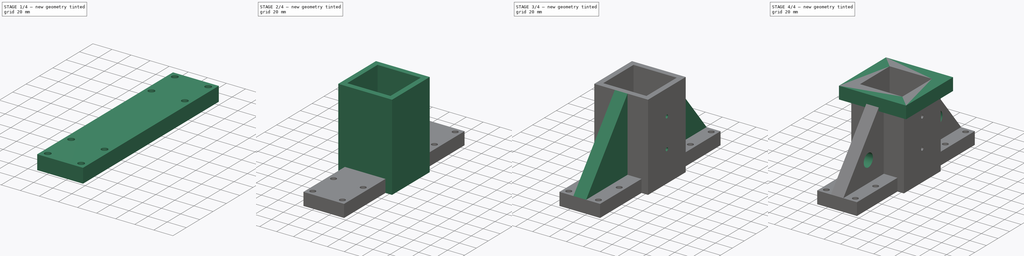
[diagram: build sequence overview — one tinted view per stage of 4, left to right]
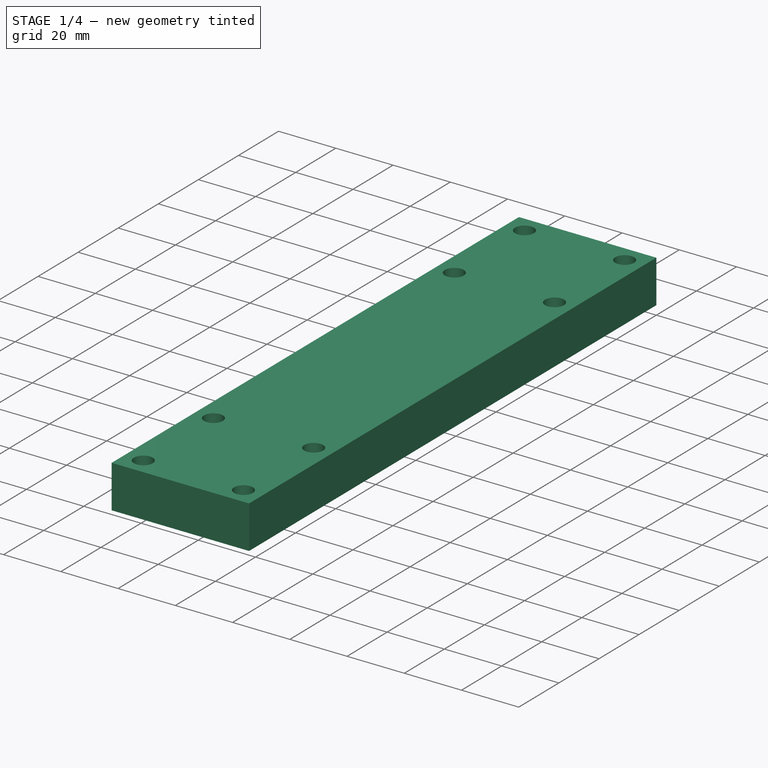
[diagram: stage 1 of 4 — iso view after this stage's code; geometry added in this stage tinted green]
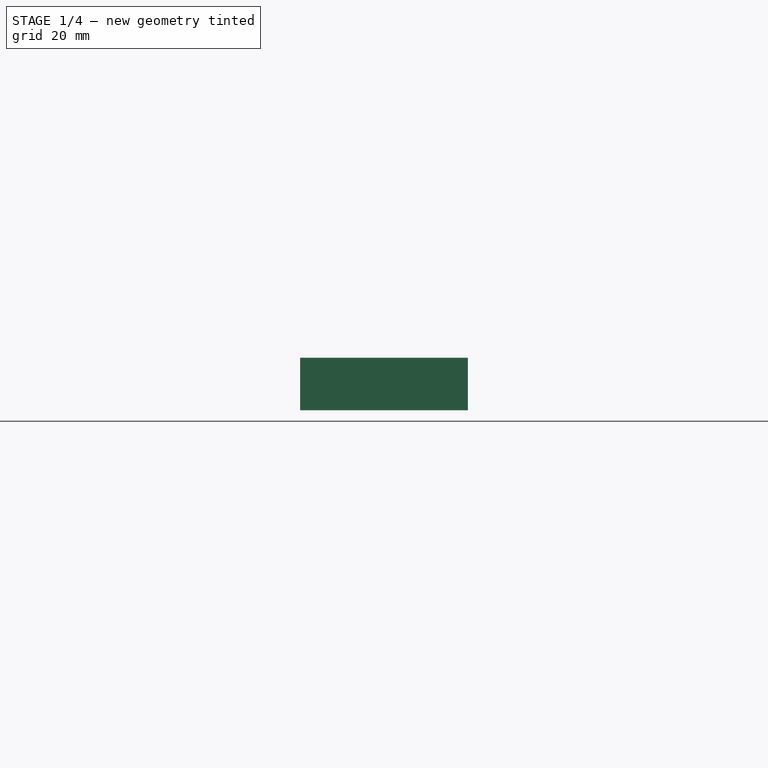
[diagram: stage 1 of 4 — front view after this stage's code; geometry added in this stage tinted green]
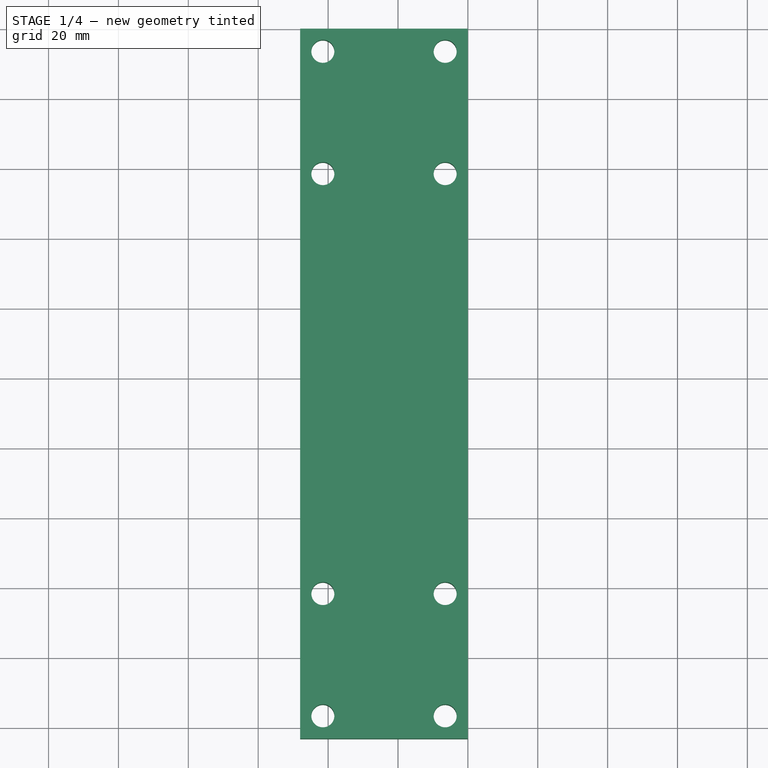
[diagram: stage 1 of 4 — top view after this stage's code; geometry added in this stage tinted green]
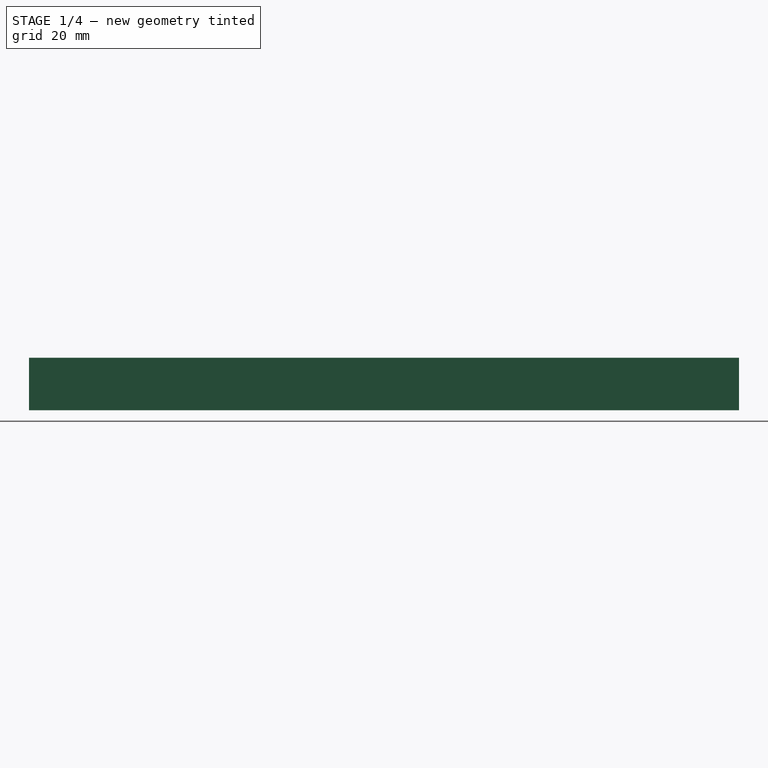
[diagram: stage 1 of 4 — right view after this stage's code; geometry added in this stage tinted green]
FCSTD DOCUMENT  (FreeCAD 1.0R39319 (Git))
Label: 2x upright
License: All rights reserved
LicenseURL: https://en.wikipedia.org/wiki/All_rights_reserved
objects: Sketcher::SketchObject×9, PartDesign::Pocket×5, PartDesign::Pad×4, PartDesign::Body×1
note: 46 computed .brp shape members not serialized (recipe doc carries the construction recipe); baked Part::Feature solids carry a one-line shape summary decoded from their .brp

FEATURE [Sketcher::SketchObject] Sketch
  ArcFitTolerance = 1e-06
  AttachmentSupport = -> [XZ_Plane]
  FullyConstrained = true
  MakeInternals = false
  MapMode = 5
  Placement = pos=(0,0,0) rot=(1,0,0;1.5708rad)
  sketch-geometry (4):
    g0: LineSegment StartX=0 StartY=0 StartZ=0 EndX=0 EndY=15 EndZ=0
    g1: LineSegment StartX=0 StartY=15 StartZ=0 EndX=-48 EndY=15 EndZ=0
    g2: LineSegment StartX=-48 StartY=15 StartZ=0 EndX=-48 EndY=0 EndZ=0
    g3: LineSegment StartX=-48 StartY=0 StartZ=0 EndX=0 EndY=0 EndZ=0
  constraints (11):
    c: Coincident(g0,g1)
    c: Coincident(g1,g2)
    c: Coincident(g2,g3)
    c: Coincident(g3,g0)
    c: Vertical(g0)
    c: Vertical(g2)
    c: Horizontal(g1)
    c: Horizontal(g3)
    c: Coincident(g0,g-1)
    c: DistanceY(g0,g1) = 15
    c: DistanceX(g1,g0) = 48
FEATURE [PartDesign::Pad] Pad
  Direction = (0,-1,2e-16)
  Length = 203.2
  Length2 = 10
  Placement = pos=(0,0,0) rot=(1,0,0;1.5708rad)
  Profile = -> Sketch
  ReferenceAxis = -> Sketch [N_Axis]
  Refine = true
  Suppressed = false
  Type = 0
FEATURE [Sketcher::SketchObject] Sketch001
  ArcFitTolerance = 1e-06
  AttachmentSupport = -> [Pad]
  FullyConstrained = true
  MakeInternals = false
  MapMode = 5
  Placement = pos=(0,0,0) rot=(1,0,0;3.14159rad)
  sketch-geometry (16):
    g0: LineSegment [constr] StartX=-6.5 StartY=6.5 StartZ=0 EndX=-6.5 EndY=41.5 EndZ=0
    g1: LineSegment [constr] StartX=-41.5 StartY=6.5 StartZ=0 EndX=-41.5 EndY=41.5 EndZ=0
    g2: LineSegment [constr] StartX=-41.5 StartY=6.5 StartZ=0 EndX=-6.5 EndY=6.5 EndZ=0
    g3: LineSegment [constr] StartX=-41.5 StartY=41.5 StartZ=0 EndX=-6.5 EndY=41.5 EndZ=0
    g4: Circle CenterX=-41.5 CenterY=41.5 CenterZ=0 NormalX=0 NormalY=0 NormalZ=1 AngleXU=0 Radius=3.3
    g5: Circle CenterX=-6.5 CenterY=41.5 CenterZ=0 NormalX=0 NormalY=0 NormalZ=1 AngleXU=0 Radius=3.3
    g6: Circle CenterX=-41.5 CenterY=6.5 CenterZ=0 NormalX=0 NormalY=0 NormalZ=1 AngleXU=0 Radius=3.3
    g7: Circle CenterX=-6.5 CenterY=6.5 CenterZ=0 NormalX=0 NormalY=0 NormalZ=1 AngleXU=0 Radius=3.3
    g8: LineSegment [constr] StartX=-6.5 StartY=161.7 StartZ=0 EndX=-6.5 EndY=196.7 EndZ=0
    g9: LineSegment [constr] StartX=-41.5 StartY=161.7 StartZ=0 EndX=-41.5 EndY=196.7 EndZ=0
    g10: LineSegment [constr] StartX=-41.5 StartY=161.7 StartZ=0 EndX=-6.5 EndY=161.7 EndZ=0
    g11: LineSegment [constr] StartX=-41.5 StartY=196.7 StartZ=0 EndX=-6.5 EndY=196.7 EndZ=0
    g12: Circle CenterX=-41.5 CenterY=196.7 CenterZ=0 NormalX=0 NormalY=0 NormalZ=1 AngleXU=0 Radius=3.3
    g13: Circle CenterX=-6.5 CenterY=196.7 CenterZ=0 NormalX=0 NormalY=0 NormalZ=1 AngleXU=0 Radius=3.3
    g14: Circle CenterX=-41.5 CenterY=161.7 CenterZ=0 NormalX=0 NormalY=0 NormalZ=1 AngleXU=0 Radius=3.3
    g15: Circle CenterX=-6.5 CenterY=161.7 CenterZ=0 NormalX=0 NormalY=0 NormalZ=1 AngleXU=0 Radius=3.3
  constraints (40):
    c: Vertical(g0)
    c: Vertical(g1)
    c: Block(g0)
    c: Block(g1)
    c: Horizontal(g2)
    c: Horizontal(g3)
    c: Block(g3)
    c: Block(g2)
    c: Coincident(g1,g3)
    c: Coincident(g3,g0)
    c: Coincident(g1,g2)
    c: Coincident(g0,g2)
    c: Diameter(g4) = 6.6
    c: Coincident(g4,g1)
    c: Diameter(g5) = 6.6
    c: Coincident(g5,g0)
    c: Diameter(g6) = 6.6
    c: Coincident(g6,g1)
    c: Diameter(g7) = 6.6
    c: Coincident(g7,g0)
    c: Vertical(g8)
    c: Vertical(g9)
    c: Block(g8)
    c: Block(g9)
    c: Horizontal(g10)
    c: Horizontal(g11)
    c: Block(g11)
    c: Block(g10)
    c: Coincident(g9,g11)
    c: Coincident(g11,g8)
    c: Coincident(g9,g10)
    c: Coincident(g8,g10)
    c: Diameter(g12) = 6.6
    c: Coincident(g12,g9)
    c: Diameter(g13) = 6.6
    c: Coincident(g13,g8)
    c: Diameter(g14) = 6.6
    c: Coincident(g14,g9)
    c: Diameter(g15) = 6.6
    c: Coincident(g15,g8)
FEATURE [PartDesign::Pocket] Pocket
  BaseFeature = -> Pad
  Direction = (0,0,1)
  Length = 15
  Length2 = 5
  Placement = pos=(0,0,0) rot=(1,0,0;1.5708rad)
  Profile = -> Sketch001
  ReferenceAxis = -> Sketch001 [N_Axis]
  Refine = true
  Suppressed = false
  Type = 0
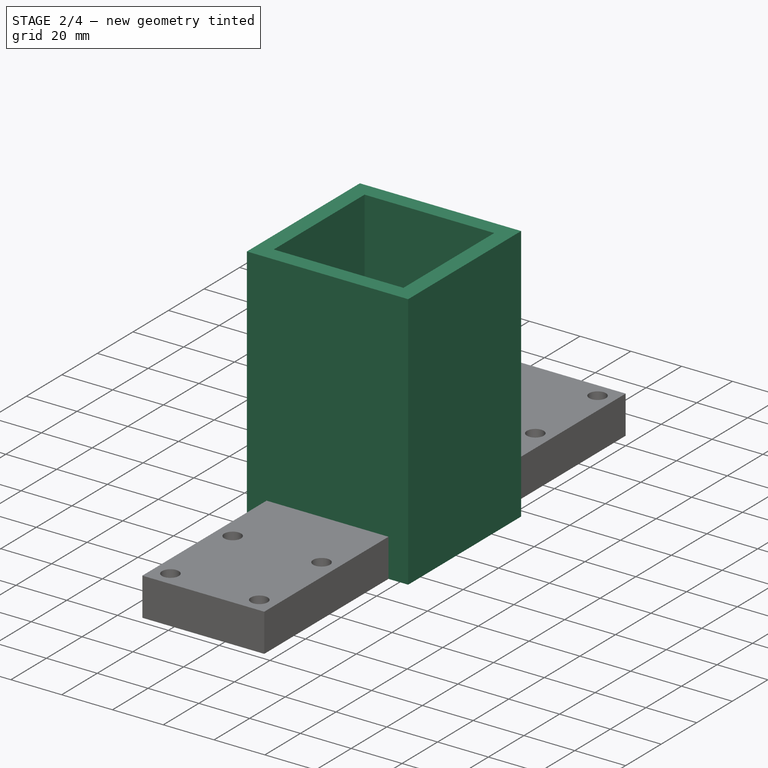
[diagram: stage 2 of 4 — iso view after this stage's code; geometry added in this stage tinted green]
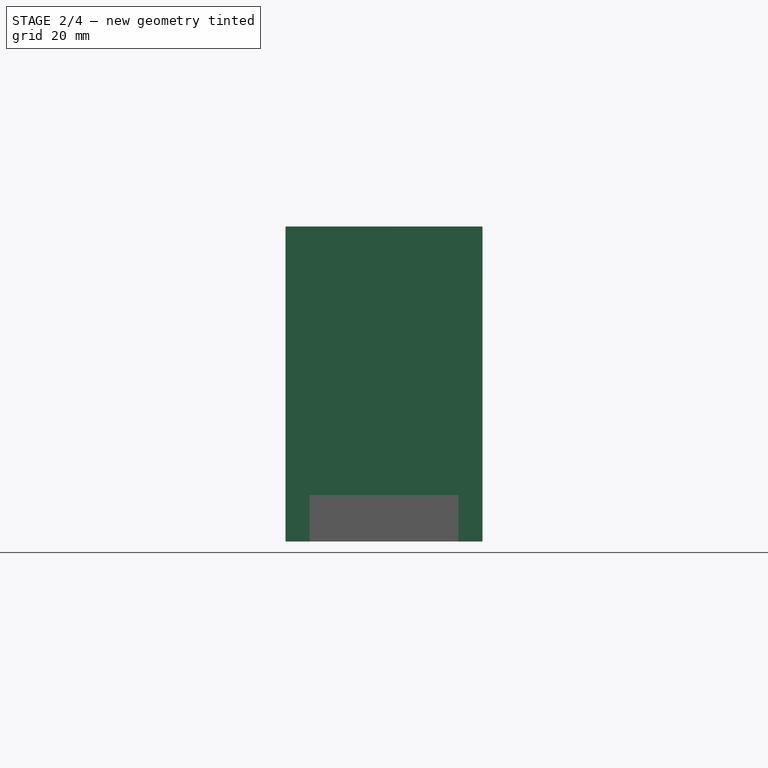
[diagram: stage 2 of 4 — front view after this stage's code; geometry added in this stage tinted green]
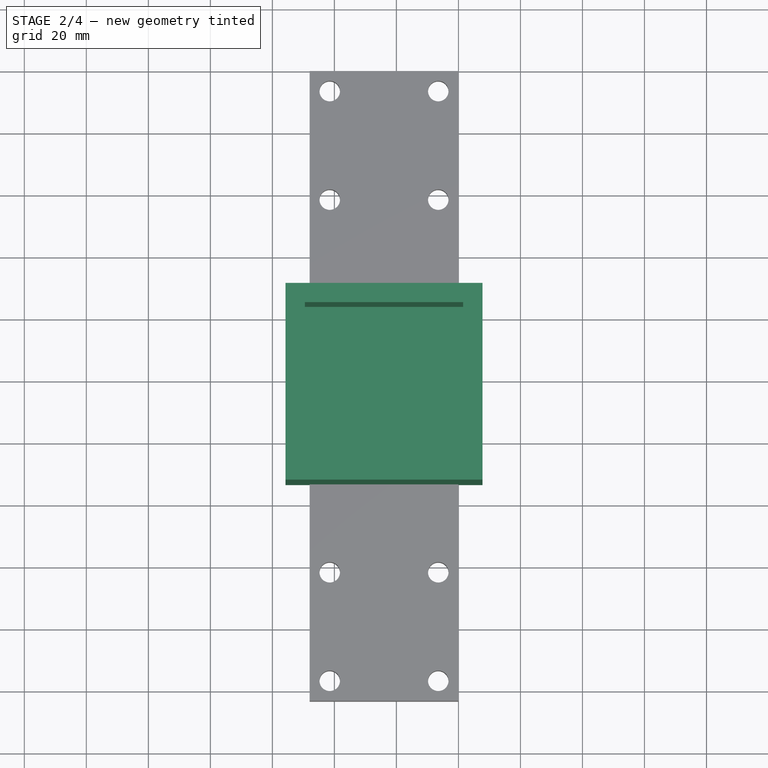
[diagram: stage 2 of 4 — top view after this stage's code; geometry added in this stage tinted green]
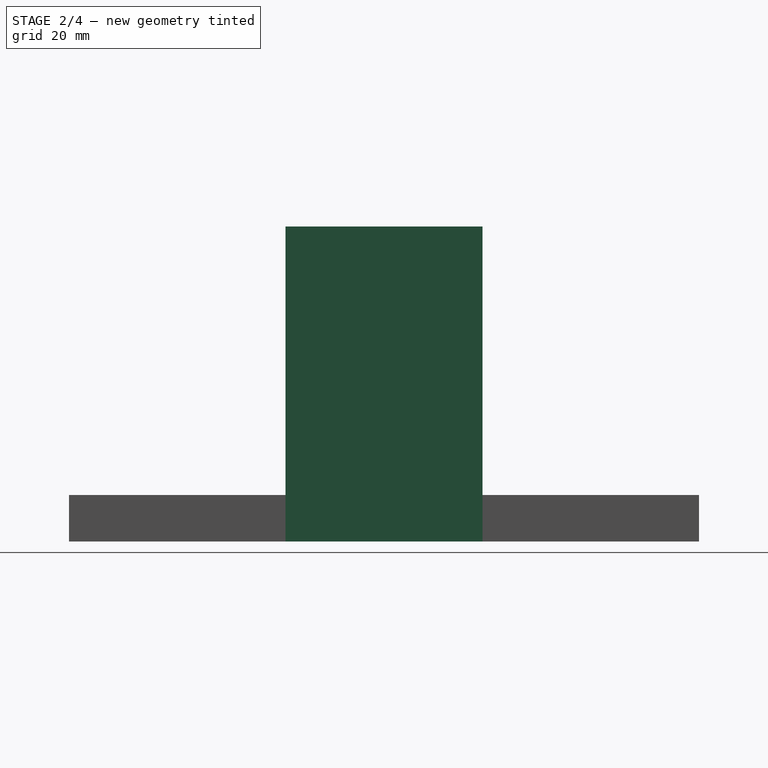
[diagram: stage 2 of 4 — right view after this stage's code; geometry added in this stage tinted green]
FEATURE [Sketcher::SketchObject] Sketch002
  ArcFitTolerance = 1e-06
  AttachmentSupport = -> [Pocket]
  ExternalGeometry = -> [Pocket]
  FullyConstrained = true
  MakeInternals = false
  MapMode = 5
  Placement = pos=(0,0,0) rot=(1,0,0;3.14159rad)
  sketch-geometry (7):
    g0: LineSegment StartX=-55.75 StartY=133.35 StartZ=0 EndX=-55.75 EndY=69.85 EndZ=0
    g1: LineSegment StartX=-55.75 StartY=69.85 StartZ=0 EndX=7.75 EndY=69.85 EndZ=0
    g2: LineSegment StartX=7.75 StartY=69.85 StartZ=0 EndX=7.75 EndY=133.35 EndZ=0
    g3: LineSegment StartX=7.75 StartY=133.35 StartZ=0 EndX=-55.75 EndY=133.35 EndZ=0
    g4: LineSegment [constr] StartX=-48 StartY=203.2 StartZ=0 EndX=-2.1e-15 EndY=-8.9e-15 EndZ=0
    g5: LineSegment [constr] StartX=0 StartY=203.2 StartZ=0 EndX=-24 EndY=101.6 EndZ=0
    g6: LineSegment [constr] StartX=-24 StartY=101.6 StartZ=0 EndX=-48 EndY=-1.56e-14 EndZ=0
  constraints (18):
    c: Coincident(g0,g1)
    c: Coincident(g1,g2)
    c: Coincident(g2,g3)
    c: Coincident(g3,g0)
    c: Vertical(g0)
    c: Vertical(g2)
    c: Horizontal(g1)
    c: Horizontal(g3)
    c: Distance(g0,g2) = 63.5
    c: Distance(g1,g3) = 63.5
    c: Coincident(g4,g-3)
    c: Coincident(g4,g-1)
    c: Coincident(g5,g-4)
    c: Coincident(g6,g-5)
    c: Coincident(g5,g6)
    c: Block(g6)
    c: Block(g5)
    c: Symmetric(g0,g1,g5)
FEATURE [PartDesign::Pad] Pad001
  BaseFeature = -> Pocket
  Direction = (0,0,-1)
  Length = 101.6
  Length2 = 10
  Placement = pos=(0,0,0) rot=(1,0,0;1.5708rad)
  Profile = -> Sketch002
  ReferenceAxis = -> Sketch002 [N_Axis]
  Refine = true
  Reversed = true
  Suppressed = false
  Type = 0
FEATURE [Sketcher::SketchObject] Sketch003
  ArcFitTolerance = 1e-06
  AttachmentSupport = -> [Pad001]
  ExternalGeometry = -> [Pad001]
  FullyConstrained = true
  MakeInternals = false
  MapMode = 5
  Placement = pos=(0,0,101.6) rot=(0,0,1;3.14159rad)
  sketch-geometry (7):
    g0: LineSegment StartX=-1.525 StartY=127.125 StartZ=0 EndX=-1.525 EndY=76.075 EndZ=0
    g1: LineSegment StartX=-1.525 StartY=76.075 StartZ=0 EndX=49.525 EndY=76.075 EndZ=0
    g2: LineSegment StartX=49.525 StartY=76.075 StartZ=0 EndX=49.525 EndY=127.125 EndZ=0
    g3: LineSegment StartX=49.525 StartY=127.125 StartZ=0 EndX=-1.525 EndY=127.125 EndZ=0
    g4: LineSegment [constr] StartX=-7.75 StartY=133.35 StartZ=0 EndX=55.75 EndY=69.85 EndZ=0
    g5: LineSegment [constr] StartX=55.75 StartY=133.35 StartZ=0 EndX=-7.75 EndY=69.85 EndZ=0
    g6: GeomPoint [constr] X=24 Y=101.6 Z=0
  constraints (16):
    c: Coincident(g0,g1)
    c: Coincident(g1,g2)
    c: Coincident(g2,g3)
    c: Coincident(g3,g0)
    c: Vertical(g0)
    c: Vertical(g2)
    c: Horizontal(g1)
    c: Horizontal(g3)
    c: Distance(g0,g2) = 51.05
    c: Distance(g1,g3) = 51.05
    c: Coincident(g4,g-3)
    c: Coincident(g4,g-5)
    c: Coincident(g5,g-4)
    c: Coincident(g5,g-6)
    c: Symmetric(g5,g5,g6)
    c: Symmetric(g0,g1,g6)
FEATURE [PartDesign::Pocket] Pocket001
  BaseFeature = -> Pad001
  Direction = (0,0,-1)
  Length = 88.9
  Length2 = 5
  Placement = pos=(0,0,0) rot=(1,0,0;1.5708rad)
  Profile = -> Sketch003
  ReferenceAxis = -> Sketch003 [N_Axis]
  Refine = true
  Suppressed = false
  Type = 0
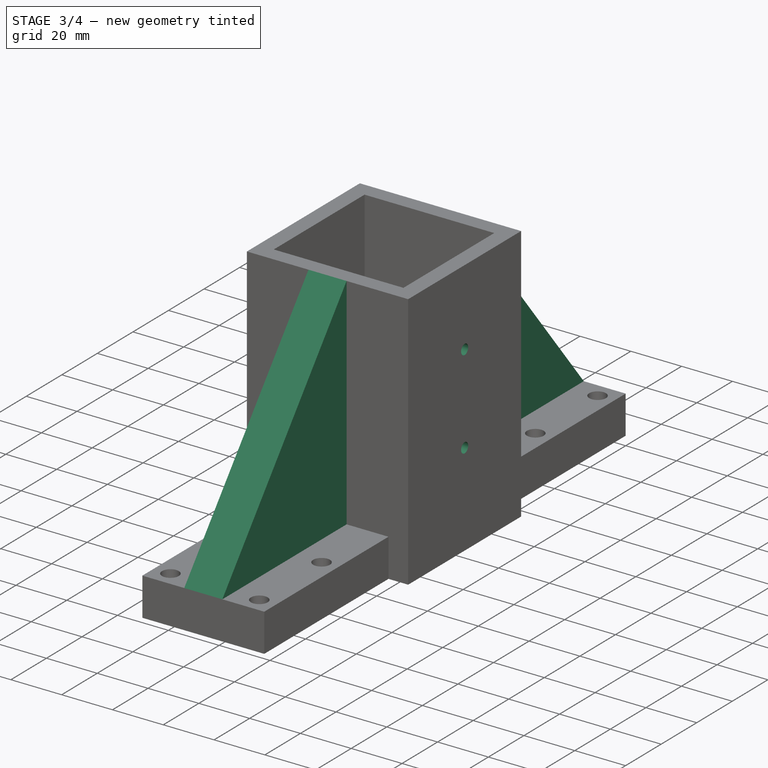
[diagram: stage 3 of 4 — iso view after this stage's code; geometry added in this stage tinted green]
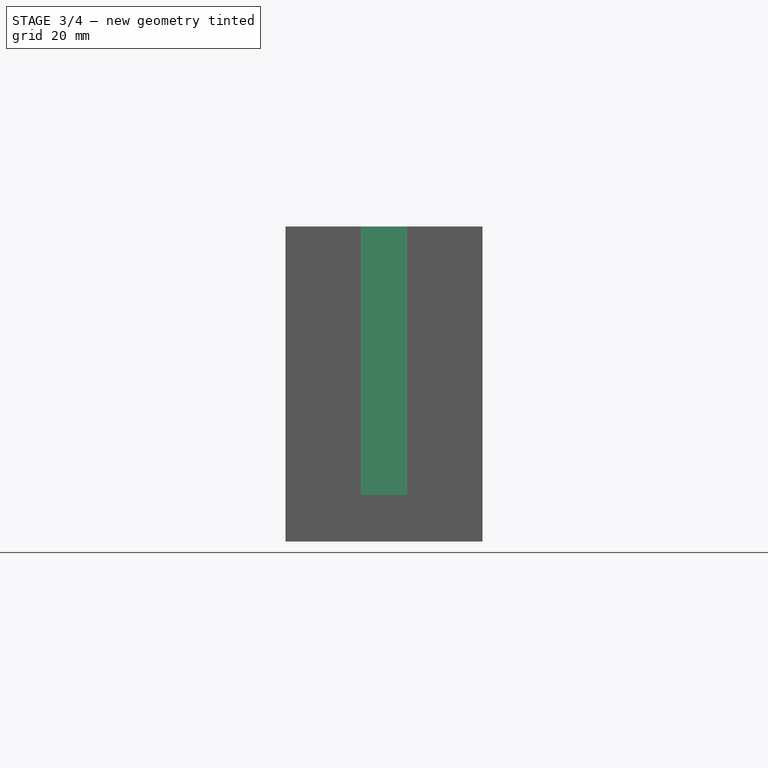
[diagram: stage 3 of 4 — front view after this stage's code; geometry added in this stage tinted green]
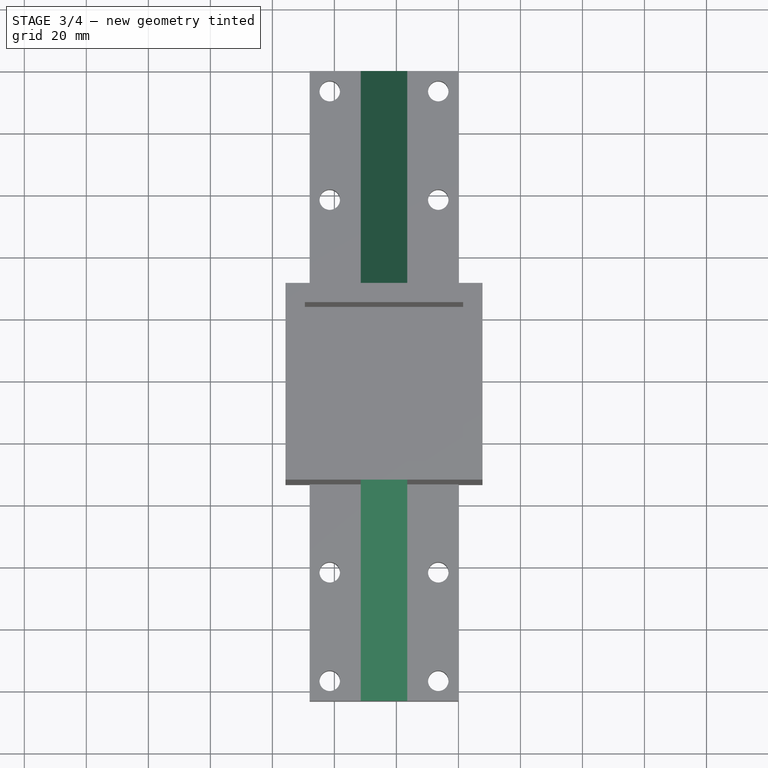
[diagram: stage 3 of 4 — top view after this stage's code; geometry added in this stage tinted green]
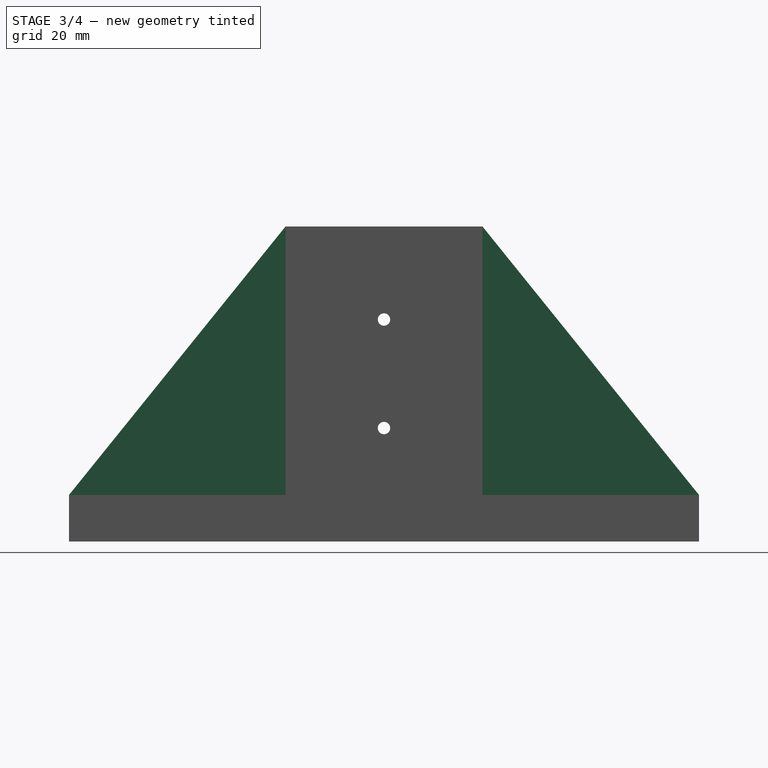
[diagram: stage 3 of 4 — right view after this stage's code; geometry added in this stage tinted green]
FEATURE [Sketcher::SketchObject] Sketch004
  ArcFitTolerance = 1e-06
  AttachmentSupport = -> [Pocket001]
  ExternalGeometry = -> [Pocket001]
  FullyConstrained = true
  MakeInternals = false
  MapMode = 5
  Placement = pos=(7.75,0,0) rot=(0.707107,0,0.707107;3.14159rad)
  sketch-geometry (6):
    g0: LineSegment [constr] StartX=0 StartY=133.35 StartZ=0 EndX=101.6 EndY=69.85 EndZ=0
    g1: LineSegment [constr] StartX=101.6 StartY=133.35 StartZ=0 EndX=-5.7e-15 EndY=69.85 EndZ=0
    g2: GeomPoint [constr] X=50.8 Y=101.6 Z=0
    g3: LineSegment [constr] StartX=-17.2907 StartY=101.6 StartZ=0 EndX=137.499 EndY=101.6 EndZ=0
    g4: Circle CenterX=71.6 CenterY=101.6 CenterZ=0 NormalX=0 NormalY=0 NormalZ=1 AngleXU=0 Radius=2
    g5: Circle CenterX=36.6 CenterY=101.6 CenterZ=0 NormalX=0 NormalY=0 NormalZ=1 AngleXU=0 Radius=2
  constraints (14):
    c: Coincident(g0,g-3)
    c: Coincident(g0,g-5)
    c: Coincident(g1,g-4)
    c: Coincident(g1,g-6)
    c: Symmetric(g0,g0,g2)
    c: Horizontal(g3)
    c: PointOnObject(g2,g3)
    c: Block(g3)
    c: Diameter(g4) = 4
    c: PointOnObject(g4,g3)
    c: Diameter(g5) = 4
    c: PointOnObject(g5,g3)
    c: DistanceX(g4,g0) = 30
    c: DistanceX(g5,g0) = 65
FEATURE [PartDesign::Pocket] Pocket002
  BaseFeature = -> Pocket001
  Direction = (-1,0,2e-16)
  Length = 15
  Length2 = 5
  Placement = pos=(0,0,0) rot=(1,0,0;1.5708rad)
  Profile = -> Sketch004
  ReferenceAxis = -> Sketch004 [N_Axis]
  Refine = true
  Suppressed = false
  Type = 0
FEATURE [Sketcher::SketchObject] Sketch005
  ArcFitTolerance = 1e-06
  AttachmentSupport = -> [Pocket002]
  ExternalGeometry = -> [Pocket002]
  FullyConstrained = true
  MakeInternals = false
  MapMode = 5
  Placement = pos=(-55.75,0,0) rot=(0.707107,0,-0.707107;3.14159rad)
  sketch-geometry (6):
    g0: LineSegment [constr] StartX=-101.6 StartY=133.35 StartZ=0 EndX=1.78e-14 EndY=69.85 EndZ=0
    g1: LineSegment [constr] StartX=0 StartY=133.35 StartZ=0 EndX=-101.6 EndY=69.85 EndZ=0
    g2: GeomPoint [constr] X=-50.8 Y=101.6 Z=0
    g3: LineSegment [constr] StartX=-103.2 StartY=101.6 StartZ=0 EndX=30 EndY=101.6 EndZ=0
    g4: Circle CenterX=-71.6 CenterY=101.6 CenterZ=0 NormalX=0 NormalY=0 NormalZ=1 AngleXU=0 Radius=2
    g5: Circle CenterX=-36.6 CenterY=101.6 CenterZ=0 NormalX=0 NormalY=0 NormalZ=1 AngleXU=0 Radius=2
  constraints (14):
    c: Coincident(g0,g-3)
    c: Coincident(g0,g-5)
    c: Coincident(g1,g-6)
    c: Coincident(g1,g-4)
    c: Symmetric(g1,g1,g2)
    c: Horizontal(g3)
    c: PointOnObject(g2,g3)
    c: Block(g3)
    c: Diameter(g4) = 4
    c: PointOnObject(g4,g3)
    c: Diameter(g5) = 4
    c: Symmetric(g3,g3,g5)
    c: DistanceX(g0,g4) = 30
    c: DistanceX(g0,g5) = 65
FEATURE [PartDesign::Pocket] Pocket003
  BaseFeature = -> Pocket002
  Direction = (1,0,2e-16)
  Length = 15
  Length2 = 5
  Placement = pos=(0,0,0) rot=(1,0,0;1.5708rad)
  Profile = -> Sketch005
  ReferenceAxis = -> Sketch005 [N_Axis]
  Refine = true
  Suppressed = false
  Type = 0
FEATURE [Sketcher::SketchObject] Sketch006
  ArcFitTolerance = 1e-06
  AttachmentOffset = pos=(0,0,-31.75) rot=(0,0,1;0rad)
  AttachmentSupport = -> [Pocket003]
  ExternalGeometry = -> [Pocket003]
  FullyConstrained = true
  MakeInternals = false
  MapMode = 5
  Placement = pos=(-24,0,7e-15) rot=(0.707107,0,0.707107;3.14159rad)
  sketch-geometry (6):
    g0: LineSegment StartX=15 StartY=133.35 StartZ=0 EndX=15 EndY=203.2 EndZ=0
    g1: LineSegment StartX=15 StartY=203.2 StartZ=0 EndX=101.6 EndY=133.35 EndZ=0
    g2: LineSegment StartX=101.6 StartY=133.35 StartZ=0 EndX=15 EndY=133.35 EndZ=0
    g3: LineSegment StartX=101.6 StartY=69.85 StartZ=0 EndX=15 EndY=69.85 EndZ=0
    g4: LineSegment StartX=15 StartY=69.85 StartZ=0 EndX=15 EndY=0 EndZ=0
    g5: LineSegment StartX=15 StartY=0 StartZ=0 EndX=101.6 EndY=69.85 EndZ=0
  constraints (12):
    c: Coincident(g-4,g0)
    c: Coincident(g0,g-4)
    c: Coincident(g0,g1)
    c: Coincident(g1,g-3)
    c: Coincident(g1,g2)
    c: Coincident(g2,g0)
    c: Coincident(g-6,g3)
    c: Coincident(g3,g-5)
    c: Coincident(g3,g4)
    c: Coincident(g4,g-5)
    c: Coincident(g4,g5)
    c: Coincident(g5,g3)
FEATURE [PartDesign::Pad] Pad002
  BaseFeature = -> Pocket003
  Direction = (1,0,-2e-16)
  Length = 15
  Length2 = 10
  Midplane = true
  Placement = pos=(0,0,0) rot=(1,0,0;1.5708rad)
  Profile = -> Sketch006
  ReferenceAxis = -> Sketch006 [N_Axis]
  Refine = true
  Suppressed = false
  Type = 0
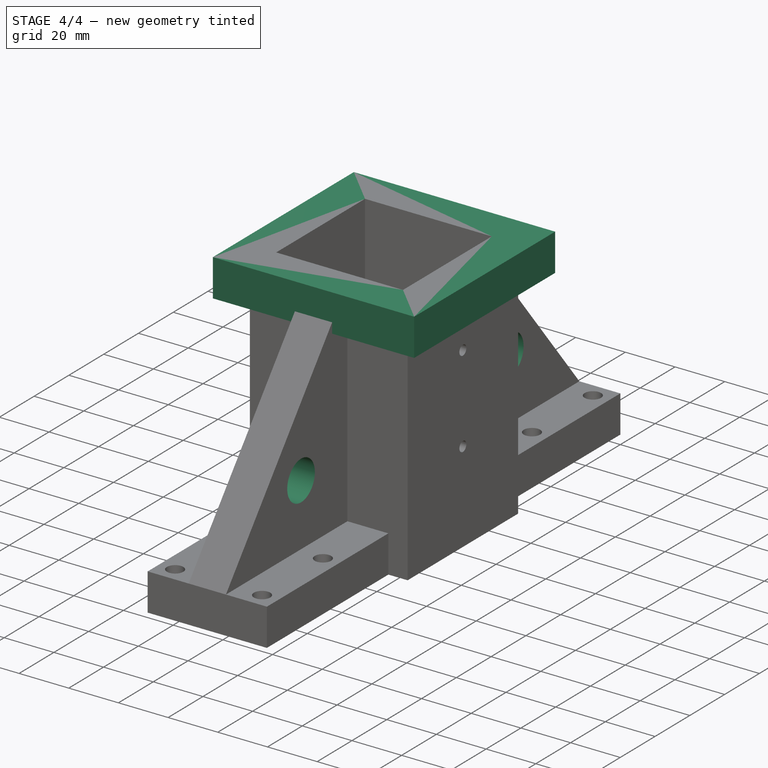
[diagram: stage 4 of 4 — iso view after this stage's code; geometry added in this stage tinted green]
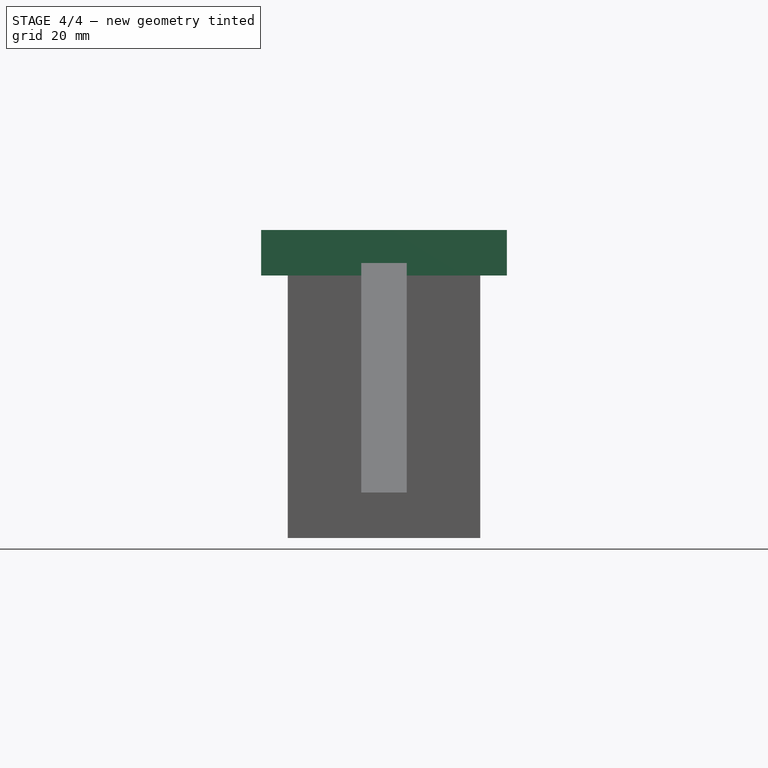
[diagram: stage 4 of 4 — front view after this stage's code; geometry added in this stage tinted green]
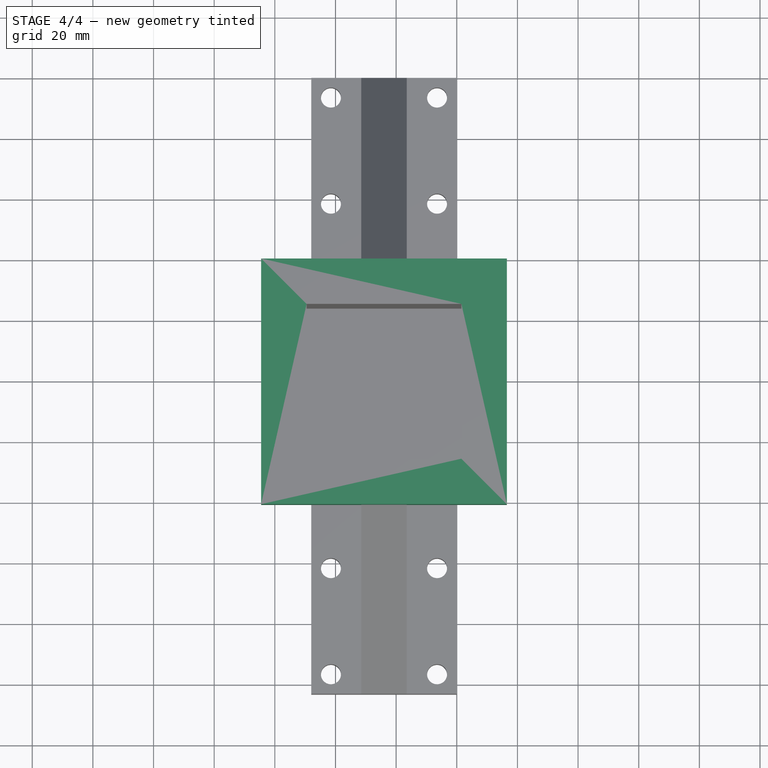
[diagram: stage 4 of 4 — top view after this stage's code; geometry added in this stage tinted green]
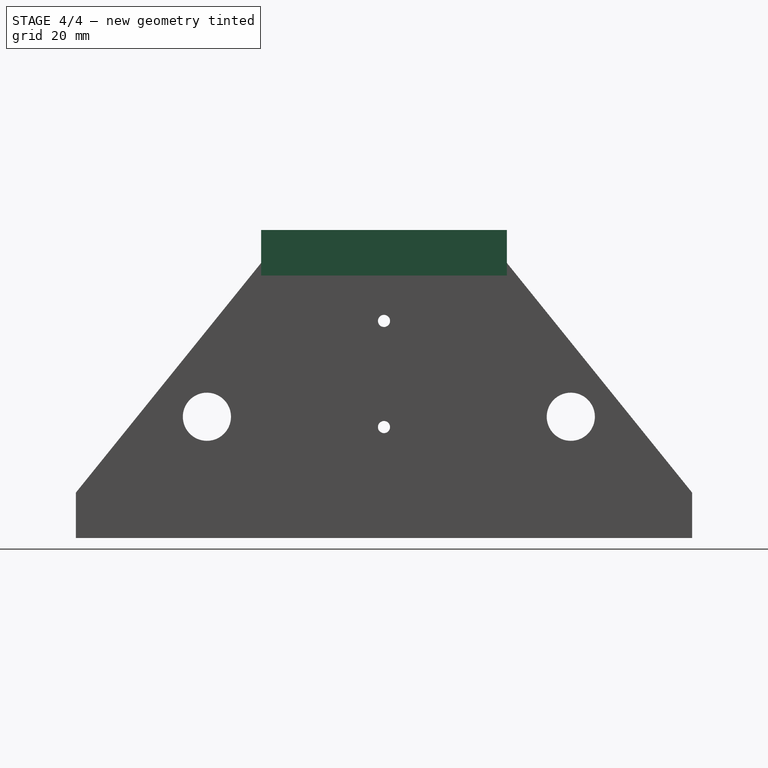
[diagram: stage 4 of 4 — right view after this stage's code; geometry added in this stage tinted green]
FEATURE [Sketcher::SketchObject] Sketch007
  ArcFitTolerance = 1e-06
  AttachmentSupport = -> [Pad002]
  ExternalGeometry = -> [Pad002]
  FullyConstrained = true
  MakeInternals = false
  MapMode = 5
  Placement = pos=(0,0,101.6) rot=(0,0,1;3.14159rad)
  sketch-geometry (11):
    g0: LineSegment StartX=-16.525 StartY=142.125 StartZ=0 EndX=-16.525 EndY=61.075 EndZ=0
    g1: LineSegment StartX=-16.525 StartY=61.075 StartZ=0 EndX=64.525 EndY=61.075 EndZ=0
    g2: LineSegment StartX=64.525 StartY=61.075 StartZ=0 EndX=64.525 EndY=142.125 EndZ=0
    g3: LineSegment StartX=64.525 StartY=142.125 StartZ=0 EndX=-16.525 EndY=142.125 EndZ=0
    g4: LineSegment StartX=-1.525 StartY=127.125 StartZ=0 EndX=-1.525 EndY=76.075 EndZ=0
    g5: LineSegment StartX=-1.525 StartY=76.075 StartZ=0 EndX=49.525 EndY=76.075 EndZ=0
    g6: LineSegment StartX=49.525 StartY=76.075 StartZ=0 EndX=49.525 EndY=127.125 EndZ=0
    g7: LineSegment StartX=49.525 StartY=127.125 StartZ=0 EndX=-1.525 EndY=127.125 EndZ=0
    g8: LineSegment [constr] StartX=-1.525 StartY=127.125 StartZ=0 EndX=49.525 EndY=76.075 EndZ=0
    g9: LineSegment [constr] StartX=49.525 StartY=127.125 StartZ=0 EndX=-1.525 EndY=76.075 EndZ=0
    g10: GeomPoint [constr] X=24 Y=101.6 Z=0
  constraints (27):
    c: Coincident(g0,g1)
    c: Coincident(g1,g2)
    c: Coincident(g2,g3)
    c: Coincident(g3,g0)
    c: Vertical(g0)
    c: Vertical(g2)
    c: Horizontal(g1)
    c: Horizontal(g3)
    c: Distance(g0,g2) = 81.05
    c: Distance(g1,g3) = 81.05
    c: Coincident(g4,g5)
    c: Coincident(g5,g6)
    c: Coincident(g6,g7)
    c: Coincident(g7,g4)
    c: Vertical(g4)
    c: Vertical(g6)
    c: Horizontal(g5)
    c: Horizontal(g7)
    c: Coincident(g4,g-3)
    c: Coincident(g5,g-5)
    c: Coincident(g8,g4)
    c: Coincident(g8,g5)
    c: Coincident(g9,g6)
    c: Coincident(g9,g4)
    c: Symmetric(g9,g9,g10)
    c: DistanceX(g0,g4) = 15
    c: DistanceY(g4,g0) = 15
FEATURE [PartDesign::Pad] Pad003
  BaseFeature = -> Pad002
  Direction = (0,0,1)
  Length = 15
  Length2 = 10
  Placement = pos=(0,0,0) rot=(1,0,0;1.5708rad)
  Profile = -> Sketch007
  ReferenceAxis = -> Sketch007 [N_Axis]
  Refine = true
  Reversed = true
  Suppressed = false
  Type = 0
FEATURE [Sketcher::SketchObject] Sketch008
  ArcFitTolerance = 1e-06
  AttachmentSupport = -> [Pad003]
  FullyConstrained = true
  MakeInternals = false
  MapMode = 5
  Placement = pos=(-16.5,0,0) rot=(0.707107,0,0.707107;3.14159rad)
  sketch-geometry (2):
    g0: Circle CenterX=40 CenterY=160 CenterZ=0 NormalX=0 NormalY=0 NormalZ=1 AngleXU=0 Radius=7.9375
    g1: Circle CenterX=40 CenterY=40 CenterZ=0 NormalX=0 NormalY=0 NormalZ=1 AngleXU=0 Radius=7.9375
  constraints (6):
    c: Diameter(g0) = 15.875
    c: Diameter(g1) = 15.875
    c: DistanceX(g-1,g1) = 40
    c: DistanceX(g-1,g0) = 40
    c: DistanceY(g-1,g1) = 40
    c: DistanceY(g-1,g0) = 160
FEATURE [PartDesign::Pocket] Pocket004
  BaseFeature = -> Pad003
  Direction = (-1,0,2e-16)
  Length = 15
  Length2 = 5
  Placement = pos=(0,0,0) rot=(1,0,0;1.5708rad)
  Profile = -> Sketch008
  ReferenceAxis = -> Sketch008 [N_Axis]
  Refine = true
  Suppressed = false
  Type = 0
FEATURE [PartDesign::Body] Body
  AllowCompound = false
  Group = -> [Sketch,Pad,Sketch001,Pocket,Sketch002,Pad001,Sketch003,Pocket001,Sketch004,Pocket002,Sketch005,Pocket003,Sketch006,Pad002,Sketch007,Pad003,Sketch008,Pocket004]
  Origin = -> Origin
  Tip = -> Pocket004
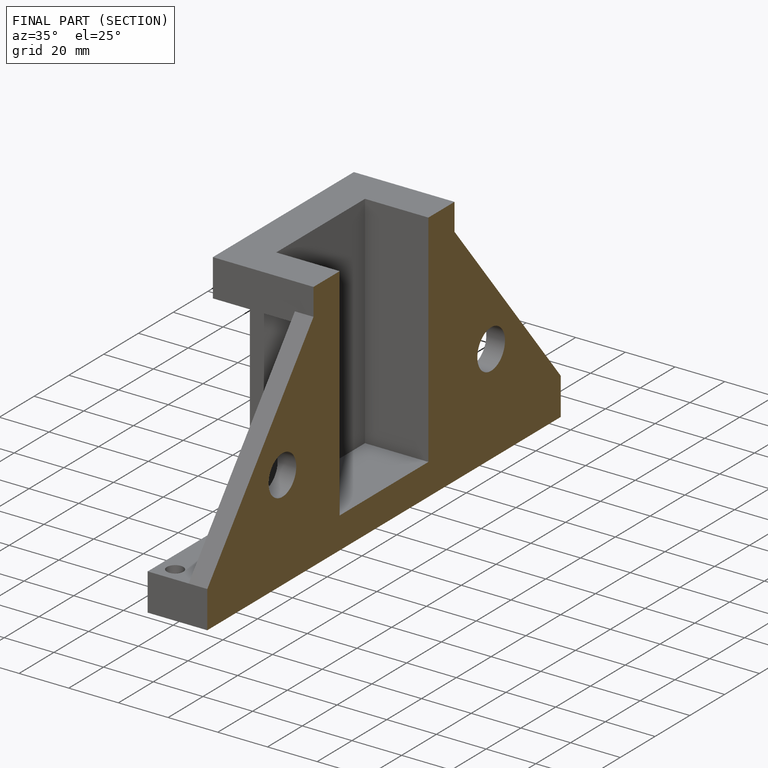
[diagram: finished part — half-section view (interior)]
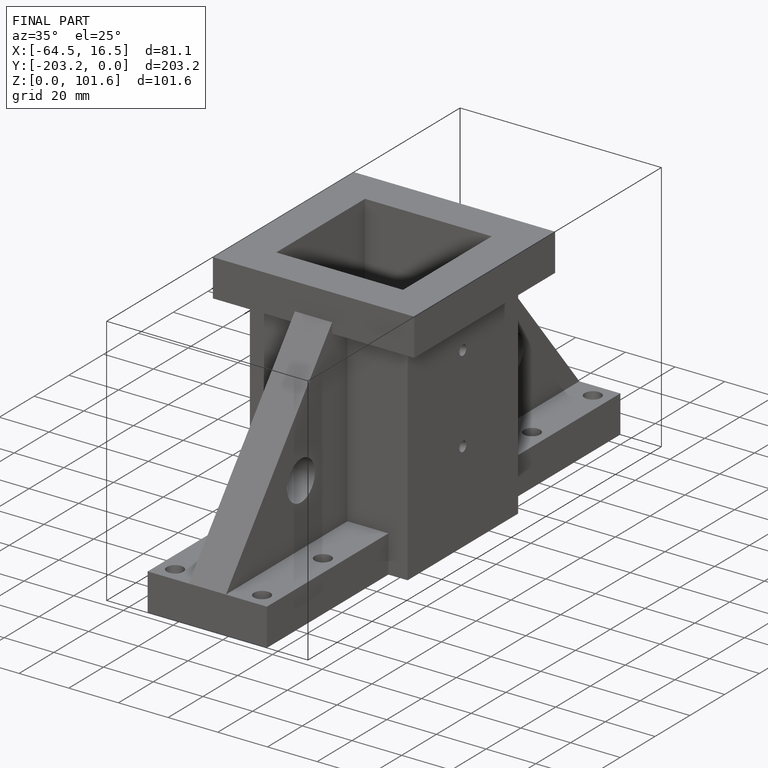
[diagram: finished part — iso view with bounding-box wireframe]
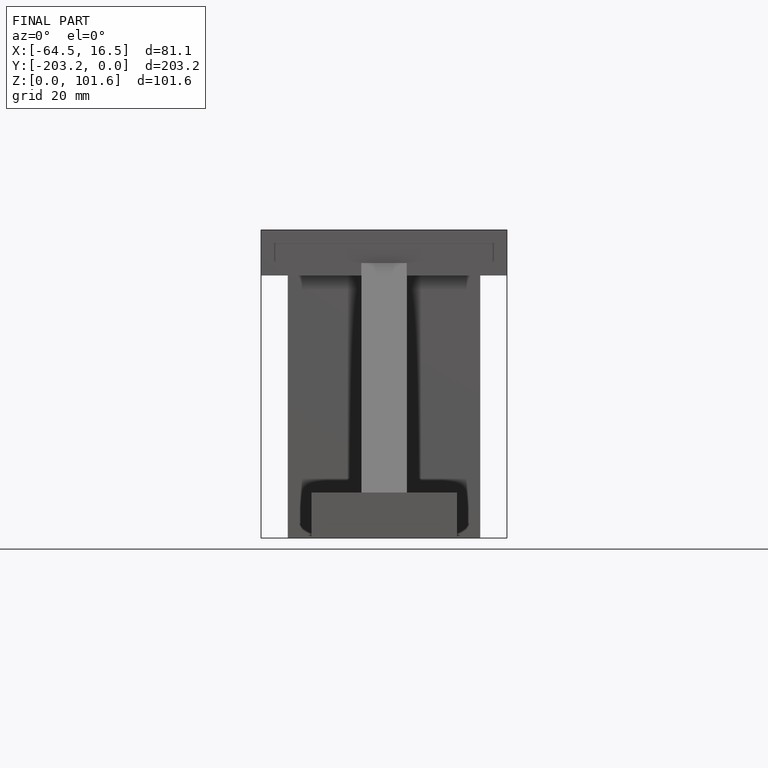
[diagram: finished part — front view with bounding-box wireframe]
